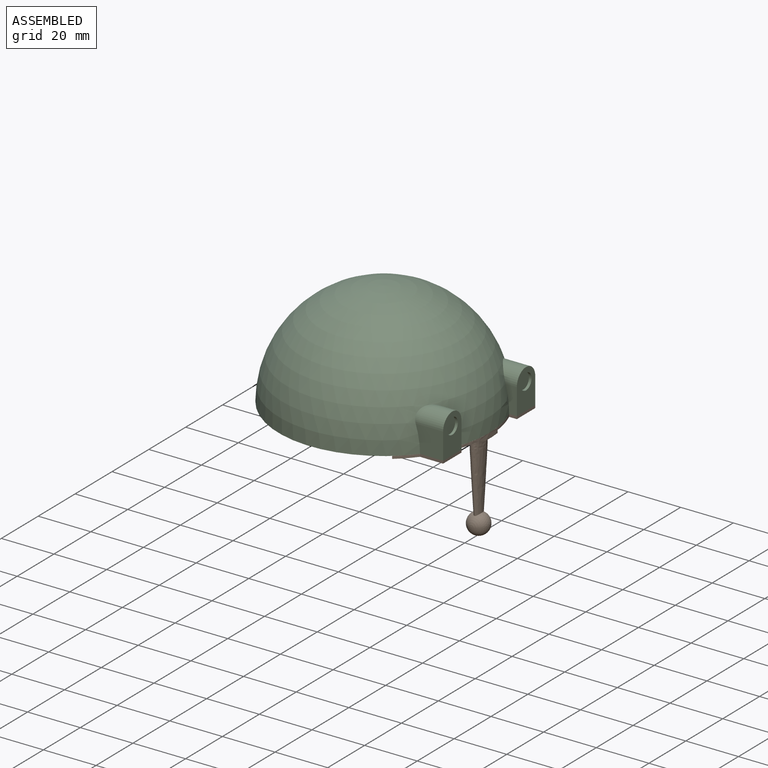
[diagram: assembled view]
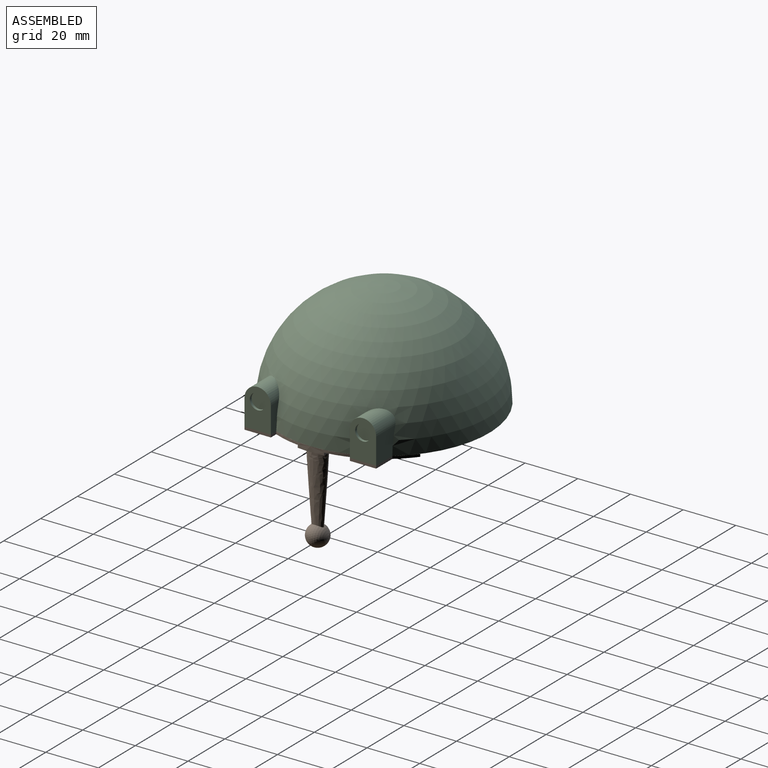
[diagram: assembled view, second angle]
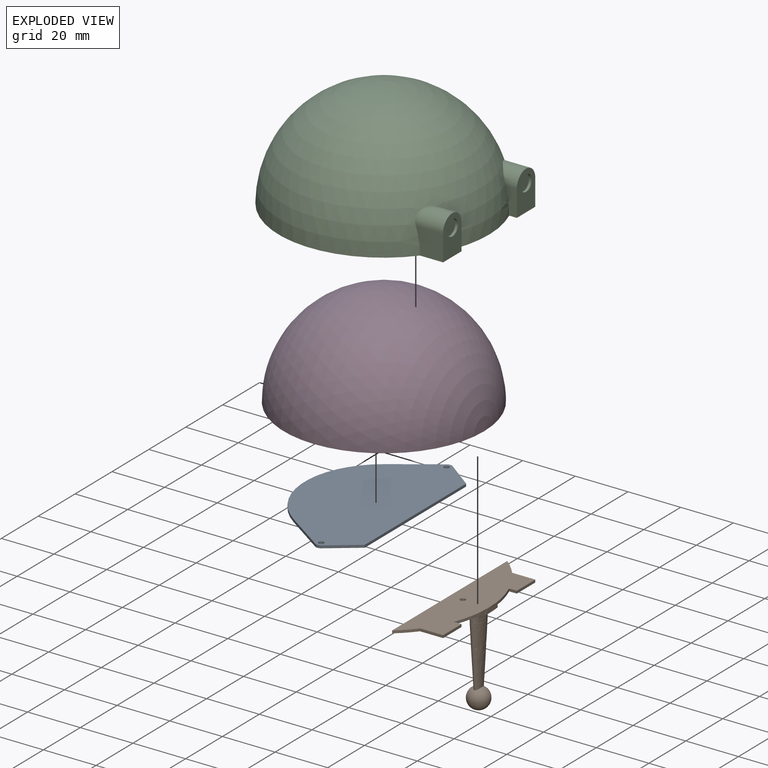
[diagram: exploded view]
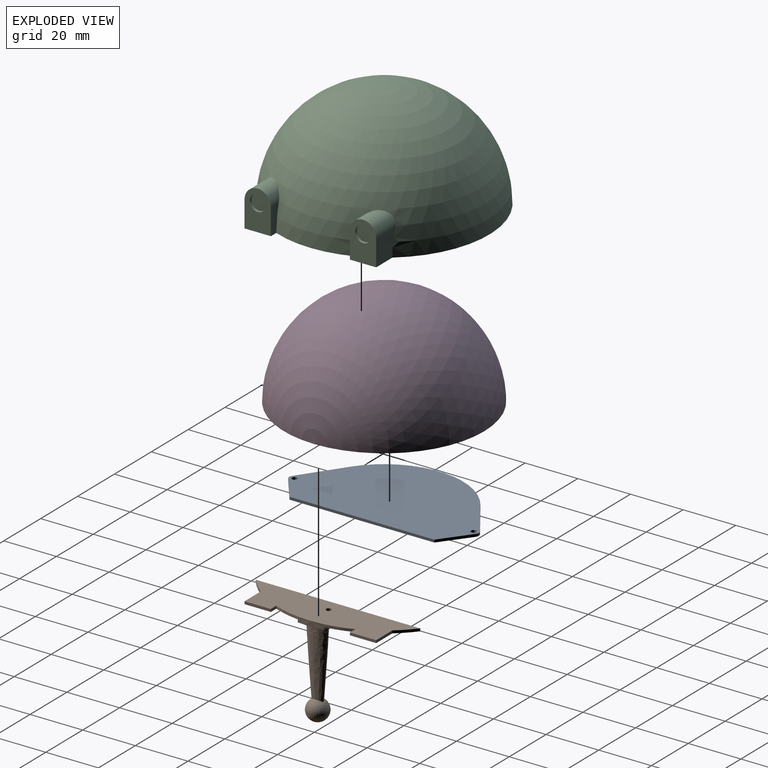
[diagram: exploded view, second angle]
ASSEMBLY  parts=4 mates=3
PART A: 12 faces, bbox 72x1x42 mm
  f0: cylinder r=30mm len=49.41mm, axis (0,1,0), area 58.1mm2, adj f1,f7,f8,f9
  f1: plane 15.88x10.94mm, normal (-0.82,0,0.57), area 19.3mm2, adj f0,f2,f8,f9
  f2: cylinder r=2mm len=2.33mm, axis (0,1,0), area 2.5mm2, adj f1,f3,f8,f9
  f3: plane 10.8x8.1mm, normal (-0.8,0,-0.6), area 13.5mm2, adj f2,f4,f8,f9
  f4: plane 55x1mm, normal (0,0,-1), area 55mm2, adj f3,f5,f8,f9
  f5: plane 10.8x8.1mm, normal (0.8,0,-0.6), area 13.5mm2, adj f4,f6,f8,f9
  f6: cylinder r=2mm len=2.33mm, axis (0,1,0), area 2.5mm2, adj f5,f7,f8,f9
  f7: plane 15.88x10.94mm, normal (0.82,0,0.57), area 19.3mm2, adj f0,f6,f8,f9
  f8: plane 72x42mm, normal (0,-1,0), area 2251.7mm2, adj f0,f1,f2,f3,f4,f5,f6,f7
  f9: plane 72x42mm, normal (0,1,0), area 2251.7mm2, adj f0,f1,f2,f3,f4,f5,f6,f7
  f10: cylinder r=1mm len=2mm, axis (0,-1,0), area 6.3mm2, adj f8,f9
  f11: cylinder r=1mm len=2mm, axis (0,-1,0), area 6.3mm2, adj f8,f9
PART B: 22 faces, bbox 62.5x15x49 mm
  f0: bspline ~45x11mm, area 417.2mm2, adj f1,f17
  f1: plane 15x10mm, normal (0,0,1), area 120.7mm2, adj f0,f3,f8,f15,f16,f18
  f2: plane 26.23x15mm, normal (0,0,1), area 306.9mm2, adj f3,f8,f9,f10,f11,f12,f16
  f3: plane 62.45x2mm, normal (0,-1,0), area 72.4mm2, adj f1,f2,f4,f12,f13,f14,f15,f16
  f4: cylinder r=40mm len=6.23mm, axis (0,0,-1), area 8.8mm2, adj f3,f5,f13,f14
  f5: plane 8.78x1mm, normal (1,0,0), area 8.8mm2, adj f4,f6,f13,f14
  f6: plane 10x1mm, normal (0,1,0), area 10mm2, adj f5,f7,f13,f14
  f7: plane 2.92x1mm, normal (-1,0,0), area 2.9mm2, adj f6,f8,f13,f14
  f8: cylinder r=40mm len=30mm, axis (0,0,-1), area 40.8mm2, adj f1,f2,f7,f9,f13,f14,f15,f16
  f9: plane 2.92x1mm, normal (1,0,0), area 2.9mm2, adj f2,f8,f10,f14
  f10: plane 10x1mm, normal (0,1,0), area 10mm2, adj f2,f9,f11,f14
  f11: plane 8.78x1mm, normal (-1,0,0), area 8.8mm2, adj f2,f10,f12,f14
  f12: cylinder r=40mm len=6.23mm, axis (0,0,-1), area 8.8mm2, adj f2,f3,f11,f14
  f13: plane 26.23x15mm, normal (0,0,1), area 306.9mm2, adj f3,f4,f5,f6,f7,f8,f15
  f14: plane 62.45x15mm, normal (0,0,-1), area 759.7mm2, adj f3,f4,f5,f6,f7,f8,f9,f10
  f15: plane 14.69x1mm, normal (1,0,0), area 14.7mm2, adj f1,f3,f8,f13
  f16: plane 14.69x1mm, normal (-1,0,0), area 14.7mm2, adj f1,f2,f3,f8
  f17: sphere r=4mm, area 192.5mm2, adj f0
  f18: cylinder r=1mm len=2mm, axis (0,0,1), area 12.6mm2, adj f1,f14
  f19: bspline ~45x11mm, area 269.1mm2, adj f20,f21
  f20: plane 8x4mm, normal (0,0,1), area 25.1mm2, adj f19
  f21: sphere r=4mm, area 0.4mm2, adj f19
PART C: 15 faces, bbox 80x80x40 mm
  f0: plane 80x80mm, normal (0,0,-1), area 600.5mm2, adj f1,f2,f3,f8,f9,f10,f13,f14
  f1: plane 15x10mm, normal (1,0,0), area 111mm2, adj f0,f2,f3,f4,f5
  f2: plane 10x4.29mm, normal (0,-1,0), area 33.7mm2, adj f0,f1,f4,f13
  f3: plane 10.42x10mm, normal (0,1,0), area 93.2mm2, adj f0,f1,f4,f13
  f4: cylinder r=5mm len=10.82mm, axis (1,0,0), area 130mm2, adj f1,f2,f3,f13
  f5: cylinder r=3mm len=6mm, axis (1,0,0), area 18.8mm2, adj f1,f6
  f6: plane 6x6mm, normal (1,0,0), area 28.3mm2, adj f5
  f7: cylinder r=5mm len=10.82mm, axis (1,0,0), area 130mm2, adj f8,f9,f10,f13
  f8: plane 15x10mm, normal (1,0,0), area 111mm2, adj f0,f7,f9,f10,f11
  f9: plane 10x4.29mm, normal (0,1,0), area 33.7mm2, adj f0,f7,f8,f13
  f10: plane 10.42x10mm, normal (0,-1,0), area 93.2mm2, adj f0,f7,f8,f13
  f11: cylinder r=3mm len=6mm, axis (1,0,0), area 18.8mm2, adj f8,f12
  f12: plane 6x6mm, normal (1,0,0), area 28.3mm2, adj f11
  f13: sphere r=40mm, area 9719.5mm2, adj f0,f2,f3,f4,f7,f9,f10
  f14: sphere r=38mm, area 9072.9mm2, adj f0
PART D: 10 faces, bbox 76x76x38 mm
  f0: plane 52.31x26.15mm, normal (0,1,0), area 1074.4mm2, adj f1,f3
  f1: sphere r=28mm, area 3342.7mm2, adj f0,f3
  f2: sphere r=38mm, area 9072.9mm2, adj f3
  f3: plane 76x76mm, normal (0,0,1), area 2749.9mm2, adj f0,f1,f2,f5,f7,f9
  f4: cone r=0mm half-angle=59deg, axis (0,0,1), area 2.8mm2, adj f5
  f5: cylinder r=0.88mm len=4mm, axis (0,0,1), area 22mm2, adj f3,f4
  f6: cone r=0mm half-angle=59deg, axis (0,0,1), area 2.8mm2, adj f7
  f7: cylinder r=0.88mm len=4mm, axis (0,0,1), area 22mm2, adj f3,f6
  f8: cone r=0mm half-angle=59deg, axis (0,0,1), area 2.8mm2, adj f9
  f9: cylinder r=0.88mm len=4mm, axis (0,0,1), area 22mm2, adj f3,f8
PLACE A rot(axis=(0.58,-0.58,-0.58),120deg) t=(72.26,78.66,-20)mm
PLACE B rot(axis=(0.71,0.71,0),180deg) t=(60.26,78.66,-20)mm
PLACE C t=(60.26,78.66,-20)mm fixed
PLACE D rot(axis=(0.71,-0.71,0),180deg) t=(60.26,78.66,-20)mm
MATE fastened D.f3 <-> C.f0  axis (0,0,-1) through (60.26,78.66,-20)mm
MATE fastened D.f6 <-> A.f6  axis (0,0,-1) through (60.26,44.66,-20)mm
MATE fastened D.f4 <-> B.f18  axis (0,0,-1) through (90.26,78.66,-20)mm
